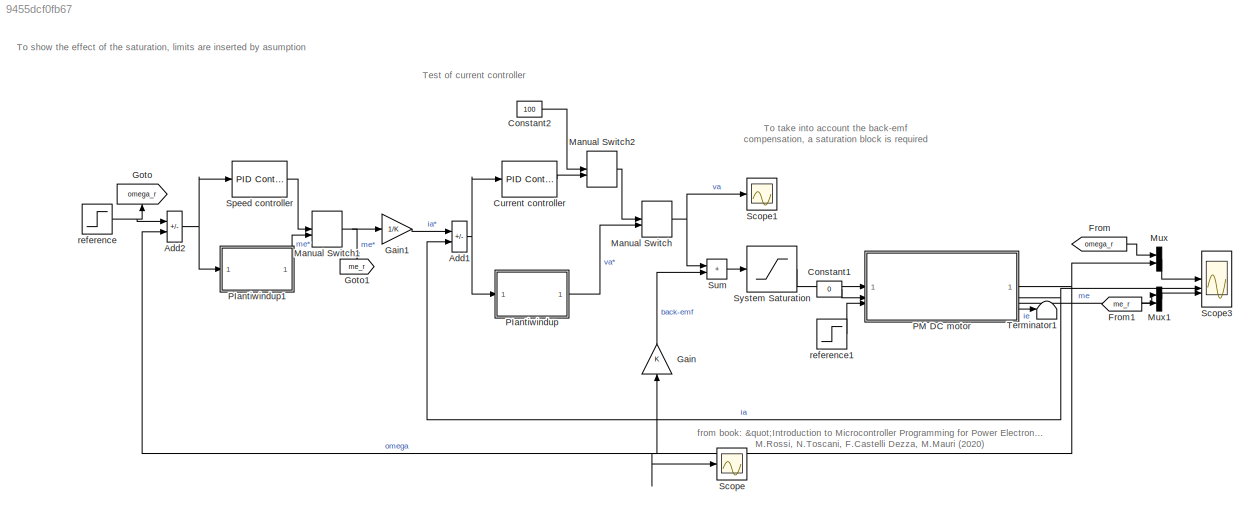
MODEL slx_9455dcf0fb67
KIND model
CONFIG AbsTol = auto
CONFIG EnableMultiTasking = on
CONFIG FixedStep = auto
CONFIG MaxStep = auto
CONFIG MinStep = auto
CONFIG RelTol = 1e-3
CONFIG SampleTimeConstraint = Unconstrained
CONFIG SolverName = ode23s
CONFIG StartTime = 0.0
CONFIG StopTime = 0.2
BLOCK [Sum] Add1
  IconShape = rectangular
  Inputs = +-
BLOCK [Sum] Add2
  IconShape = rectangular
  Inputs = +-
BLOCK [Constant] Constant1
  Value = 0
BLOCK [Constant] Constant2
  Value = 100
BLOCK [Reference] Current controller  REF=slpidlib/PID Controller
  LibrarySourceBlock = simulink/Continuous/PID Controller
  SourceBlock = slpidlib/PID Controller
  SourceType = PID 1dof
BLOCK [From] From
  GotoTag = omega_r
BLOCK [From] From1
  GotoTag = me_r
BLOCK [Gain] Gain
  Gain = K
  NameLocation = left
BLOCK [Gain] Gain1
  Gain = 1/K
  NameLocation = top
BLOCK [Goto] Goto
  GotoTag = omega_r
  NameLocation = left
BLOCK [Goto] Goto1
  GotoTag = me_r
  NameLocation = right
BLOCK [ManualSwitch] Manual Switch
  CurrentSetting = 0
BLOCK [ManualSwitch] Manual Switch1
  CurrentSetting = 0
BLOCK [ManualSwitch] Manual Switch2
  CurrentSetting = 0
BLOCK [Mux] Mux
  DisplayOption = bar
  Inputs = 2
BLOCK [Mux] Mux1
  DisplayOption = bar
  Inputs = 2
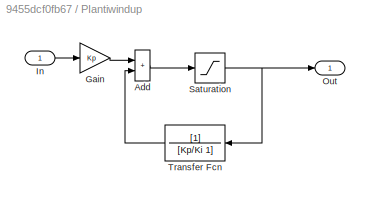
BLOCK [SubSystem] PIantiwindup
BLOCK [Sum] PIantiwindup/Add
  IconShape = rectangular
BLOCK [Gain] PIantiwindup/Gain
  Gain = Kp
BLOCK [Inport] PIantiwindup/In
BLOCK [Outport] PIantiwindup/Out
  VectorParamsAs1DForOutWhenUnconnected = off
BLOCK [Saturate] PIantiwindup/Saturation
  LowerLimit = sat_down
  UpperLimit = sat_up
BLOCK [TransferFcn] PIantiwindup/Transfer Fcn
  Denominator = [Kp/Ki 1]
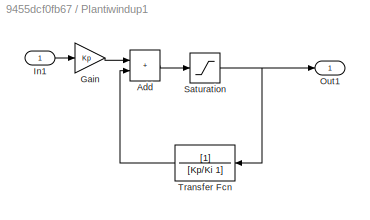
BLOCK [SubSystem] PIantiwindup1
BLOCK [Sum] PIantiwindup1/Add
  IconShape = rectangular
BLOCK [Gain] PIantiwindup1/Gain
  Gain = Kp
BLOCK [Inport] PIantiwindup1/In1
BLOCK [Outport] PIantiwindup1/Out1
  VectorParamsAs1DForOutWhenUnconnected = off
BLOCK [Saturate] PIantiwindup1/Saturation
  LowerLimit = sat_down
  UpperLimit = sat_up
BLOCK [TransferFcn] PIantiwindup1/Transfer Fcn
  Denominator = [Kp/Ki 1]
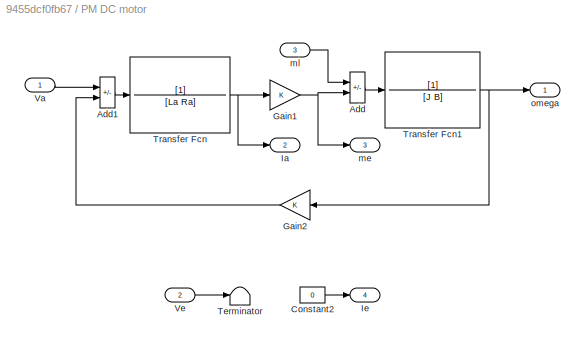
BLOCK [SubSystem] PM DC motor
BLOCK [Sum] PM DC motor/Add
  IconShape = rectangular
  Inputs = -+
BLOCK [Sum] PM DC motor/Add1
  IconShape = rectangular
  Inputs = +-
BLOCK [Constant] PM DC motor/Constant2
  Value = 0
BLOCK [Gain] PM DC motor/Gain1
  Gain = K
BLOCK [Gain] PM DC motor/Gain2
  Gain = K
  NameLocation = top
BLOCK [Outport] PM DC motor/Ia
  Port = 2
  VectorParamsAs1DForOutWhenUnconnected = off
BLOCK [Outport] PM DC motor/Ie
  Port = 4
  VectorParamsAs1DForOutWhenUnconnected = off
BLOCK [Terminator] PM DC motor/Terminator
BLOCK [TransferFcn] PM DC motor/Transfer Fcn
  Denominator = [La Ra]
BLOCK [TransferFcn] PM DC motor/Transfer Fcn1
  Denominator = [J B]
BLOCK [Inport] PM DC motor/Va
BLOCK [Inport] PM DC motor/Ve
  Port = 2
BLOCK [Outport] PM DC motor/me
  Port = 3
  VectorParamsAs1DForOutWhenUnconnected = off
BLOCK [Inport] PM DC motor/ml
  Port = 3
BLOCK [Outport] PM DC motor/omega
  VectorParamsAs1DForOutWhenUnconnected = off
BLOCK [Scope] Scope
  Floating = off
  NumInputPorts = 1
  ScopeSpecificationString = Simulink.scopes.TimeScopeBlockCfg('CurrentConfiguration', extmgr.ConfigurationSet(extmgr.Configuration('Core','General UI',true),extmgr.Configuration('Core','Source UI',true),extmgr.Configuration('Sources','WiredSimulink',true,'DataLoggingVariableName','ScopeData1'),extmgr.Configuration('Visuals','Time Domain',true,'SerializedDisplays',{struct('MinYLimReal','-44.53619','MaxYLimReal','338.2818','YL...<+1370ch>
BLOCK [Scope] Scope1
  Floating = off
  NumInputPorts = 1
  ScopeSpecificationString = Simulink.scopes.TimeScopeBlockCfg('CurrentConfiguration', extmgr.ConfigurationSet(extmgr.Configuration('Core','General UI',true),extmgr.Configuration('Core','Source UI',true),extmgr.Configuration('Sources','WiredSimulink',true,'DataLoggingVariableName','ScopeData2'),extmgr.Configuration('Visuals','Time Domain',true,'SerializedDisplays',{struct('MinYLimReal','-75.00000','MaxYLimReal','675.00000','Y...<+1423ch>
BLOCK [Scope] Scope3
  Floating = off
  NumInputPorts = 3
  ScopeSpecificationString = Simulink.scopes.TimeScopeBlockCfg('CurrentConfiguration', extmgr.ConfigurationSet(extmgr.Configuration('Core','General UI',true,'FigureColor',[1 1 1]),extmgr.Configuration('Core','Source UI',true),extmgr.Configuration('Sources','WiredSimulink',true,'DataLoggingVariableName','ScopeData3','DataLoggingLimitDataPoints',true,'DataLoggingSaveFormat','Array','DataLoggingDecimation','1','DataLoggingDecima...<+3627ch>
BLOCK [Reference] Speed controller  REF=slpidlib/PID Controller
  LibrarySourceBlock = simulink/Continuous/PID Controller
  SourceBlock = slpidlib/PID Controller
  SourceType = PID 1dof
BLOCK [Sum] Sum
  IconShape = rectangular
BLOCK [Saturate] System Saturation
  LowerLimit = -600
  UpperLimit = 600
BLOCK [Terminator] Terminator1
BLOCK [Step] reference
  After = 300
  NameLocation = top
  SampleTime = 0
  Time = 0.05
BLOCK [Step] reference1
  After = 3
  NameLocation = top
  SampleTime = 0
  Time = 0.05
ANNOTATION (root): from book: "Introduction to Microcontroller Programming for Power Electronics Control Applications" M.Rossi, N.Toscani, F.Castelli Dezza, M.Mauri (2020)
ANNOTATION (root): Test of current controller
ANNOTATION (root): To show the effect of the saturation, limits are inserted by asumption
ANNOTATION (root): To take into account the back-emf compensation, a saturation block is required
NET Add1:1 -> Current controller:1, PIantiwindup:1
NET Add2:1 -> PIantiwindup1:1, Speed controller:1
LINE Constant1:1 -> PM DC motor:2
LINE Constant2:1 -> Manual Switch2:1
LINE Current controller:1 -> Manual Switch2:2
LINE From1:1 -> Mux1:2
LINE From:1 -> Mux:1
LINE Gain1:1 -> Add1:1
LINE Gain:1 -> Sum:2
NET Manual Switch1:1 -> Gain1:1, Goto1:1
LINE Manual Switch2:1 -> Manual Switch:1
NET Manual Switch:1 -> Scope1:1, Sum:1
LINE Mux1:1 -> Scope3:3
LINE Mux:1 -> Scope3:1
LINE PIantiwindup/Add:1 -> PIantiwindup/Saturation:1
LINE PIantiwindup/Gain:1 -> PIantiwindup/Add:1
LINE PIantiwindup/In:1 -> PIantiwindup/Gain:1
NET PIantiwindup/Saturation:1 -> PIantiwindup/Out:1, PIantiwindup/Transfer Fcn:1
LINE PIantiwindup/Transfer Fcn:1 -> PIantiwindup/Add:2
LINE PIantiwindup1/Add:1 -> PIantiwindup1/Saturation:1
LINE PIantiwindup1/Gain:1 -> PIantiwindup1/Add:1
LINE PIantiwindup1/In1:1 -> PIantiwindup1/Gain:1
NET PIantiwindup1/Saturation:1 -> PIantiwindup1/Out1:1, PIantiwindup1/Transfer Fcn:1
LINE PIantiwindup1/Transfer Fcn:1 -> PIantiwindup1/Add:2
LINE PIantiwindup1:1 -> Manual Switch1:2
LINE PIantiwindup:1 -> Manual Switch:2
LINE PM DC motor/Add1:1 -> PM DC motor/Transfer Fcn:1
LINE PM DC motor/Add:1 -> PM DC motor/Transfer Fcn1:1
LINE PM DC motor/Constant2:1 -> PM DC motor/Ie:1
NET PM DC motor/Gain1:1 -> PM DC motor/Add:2, PM DC motor/me:1
LINE PM DC motor/Gain2:1 -> PM DC motor/Add1:2
NET PM DC motor/Transfer Fcn1:1 -> PM DC motor/Gain2:1, PM DC motor/omega:1
NET PM DC motor/Transfer Fcn:1 -> PM DC motor/Gain1:1, PM DC motor/Ia:1
LINE PM DC motor/Va:1 -> PM DC motor/Add1:1
LINE PM DC motor/Ve:1 -> PM DC motor/Terminator:1
LINE PM DC motor/ml:1 -> PM DC motor/Add:1
NET PM DC motor:1 -> Add2:2, Gain:1, Mux:2, Scope:1
NET PM DC motor:2 -> Add1:2, Scope3:2
LINE PM DC motor:3 -> Mux1:1
LINE PM DC motor:4 -> Terminator1:1
LINE Speed controller:1 -> Manual Switch1:1
LINE Sum:1 -> System Saturation:1
LINE System Saturation:1 -> PM DC motor:1
LINE reference1:1 -> PM DC motor:3
NET reference:1 -> Add2:1, Goto:1
note: NET lines group one-source signal fan-out (src -> all destinations, sorted); 1:1 wires keep LINE
